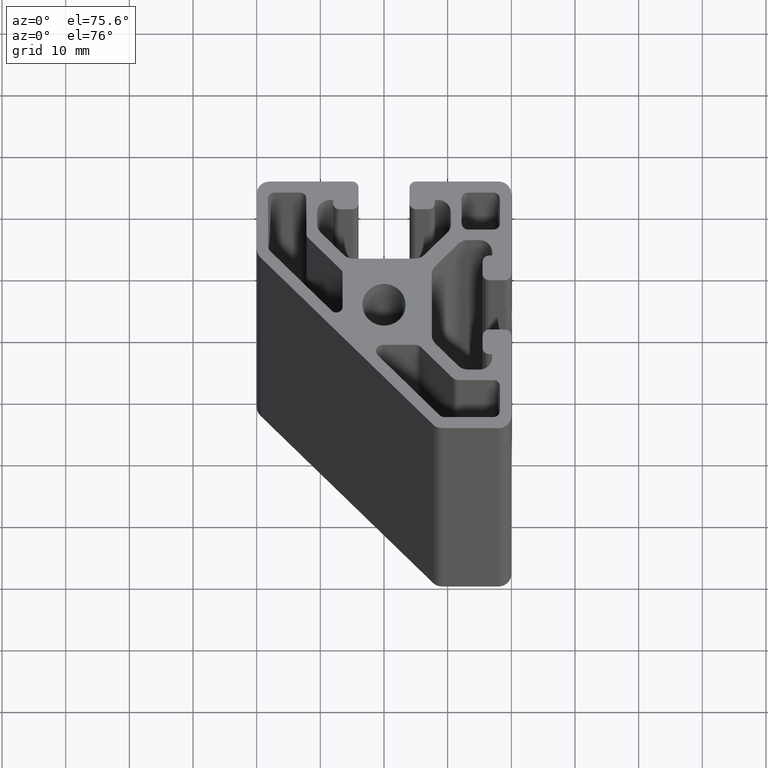
[diagram: clean part render]
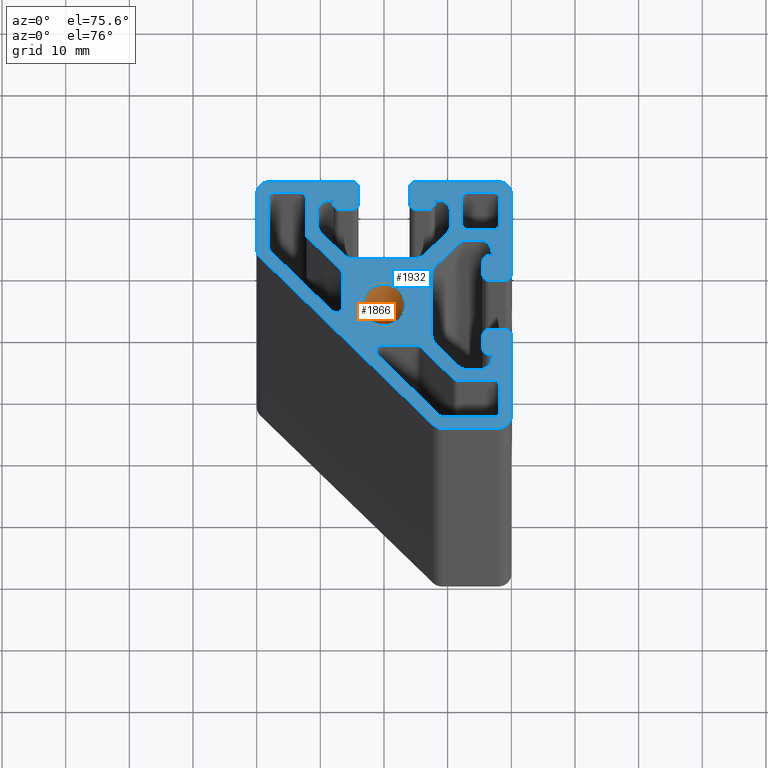
[diagram: same view with the hole feature highlighted: cylindrical wall and planar end face, labeled with their STEP entity ids]
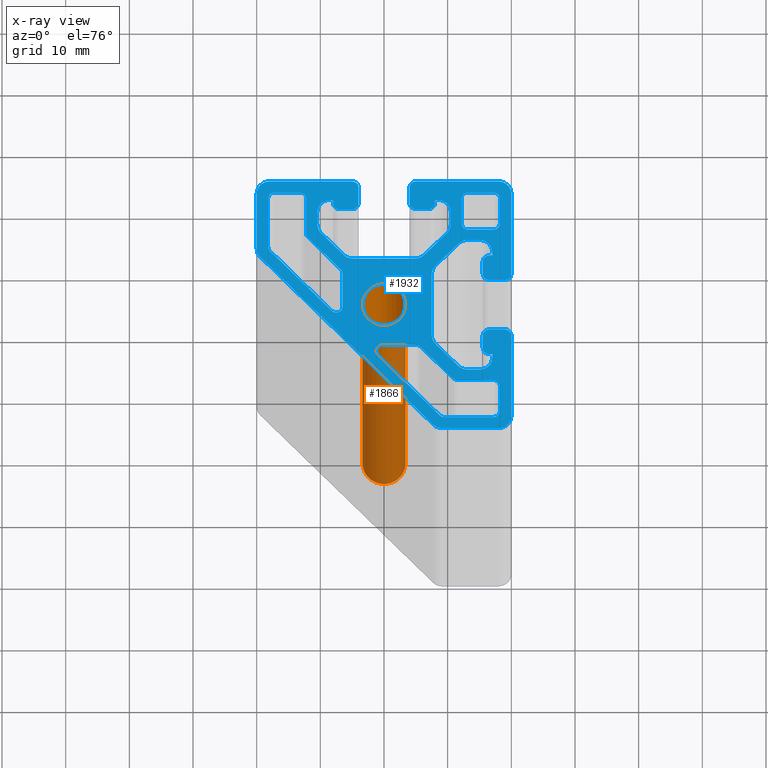
[diagram: x-ray of the same camera — body ghosted, the hole faces saturated]
A machine part, auxiliary view. The highlighted faces form one hole feature of diameter 6.8 mm: the cylindrical wall (entity #1866, orange) and its adjacent planar end face (entity #1932, blue) — they share a circular edge in the B-rep.
The next image is the same camera in x-ray (body ghosted, the hole faces saturated) — the bore reads through the body.
Wall:
#15=FACE_BOUND('',#197,.T.);
#99=FACE_OUTER_BOUND('',#196,.T.);
#196=EDGE_LOOP('',(#1324));
#197=EDGE_LOOP('',(#1325));
#686=CIRCLE('',#1990,3.3999932);
#687=CIRCLE('',#1991,3.3999932);
#802=VERTEX_POINT('',#2848);
#803=VERTEX_POINT('',#2850);
#1016=EDGE_CURVE('',#802,#802,#686,.T.);
#1017=EDGE_CURVE('',#803,#803,#687,.T.);
#1324=ORIENTED_EDGE('',*,*,#1016,.F.);
#1325=ORIENTED_EDGE('',*,*,#1017,.F.);
#1808=CYLINDRICAL_SURFACE('',#1989,3.3999932);
#1866=ADVANCED_FACE('',(#99,#15),#1808,.F.);
#1989=AXIS2_PLACEMENT_3D('',#2847,#2276,#2277);
#1990=AXIS2_PLACEMENT_3D('',#2849,#2278,#2279);
#1991=AXIS2_PLACEMENT_3D('',#2851,#2280,#2281);
#2276=DIRECTION('center_axis',(0.,0.,1.));
#2277=DIRECTION('ref_axis',(-1.,0.,0.));
#2278=DIRECTION('center_axis',(0.,0.,-1.));
#2279=DIRECTION('ref_axis',(-1.,0.,0.));
#2280=DIRECTION('center_axis',(0.,0.,1.));
#2281=DIRECTION('ref_axis',(-1.,0.,0.));
#2847=CARTESIAN_POINT('Origin',(0.,0.,0.));
#2848=CARTESIAN_POINT('',(3.3999932,-4.16379078950276E-16,100.));
#2849=CARTESIAN_POINT('Origin',(0.,0.,100.));
#2850=CARTESIAN_POINT('',(3.3999932,4.16379078950276E-16,0.));
#2851=CARTESIAN_POINT('Origin',(0.,0.,0.));
End face:
#16=FACE_BOUND('',#264,.T.);
#17=FACE_BOUND('',#265,.T.);
#18=FACE_BOUND('',#266,.T.);
#19=FACE_BOUND('',#267,.T.);
#71=PLANE('',#2117);
#165=FACE_OUTER_BOUND('',#263,.T.);
#263=EDGE_LOOP('',(#1586,#1587,#1588,#1589,#1590,#1591,#1592,#1593,#1594,
#1595,#1596,#1597,#1598,#1599,#1600,#1601,#1602,#1603,#1604,#1605,#1606,
#1607,#1608,#1609,#1610,#1611,#1612,#1613,#1614,#1615,#1616,#1617,#1618,
#1619,#1620,#1621,#1622,#1623,#1624,#1625,#1626,#1627,#1628,#1629,#1630,
#1631,#1632,#1633,#1634,#1635,#1636,#1637,#1638,#1639,#1640,#1641,#1642,
#1643,#1644,#1645,#1646,#1647));
#264=EDGE_LOOP('',(#1648,#1649,#1650,#1651,#1652,#1653,#1654,#1655));
#265=EDGE_LOOP('',(#1656));
#266=EDGE_LOOP('',(#1657,#1658,#1659,#1660,#1661,#1662,#1663,#1664,#1665,
#1666,#1667,#1668));
#267=EDGE_LOOP('',(#1669,#1670,#1671,#1672,#1673,#1674,#1675,#1676,#1677,
#1678,#1679,#1680));
#280=LINE('',#2714,#472);
#284=LINE('',#2726,#476);
#288=LINE('',#2738,#480);
#292=LINE('',#2750,#484);
#296=LINE('',#2762,#488);
#300=LINE('',#2773,#492);
#304=LINE('',#2786,#496);
#308=LINE('',#2798,#500);
#312=LINE('',#2810,#504);
#316=LINE('',#2822,#508);
#320=LINE('',#2834,#512);
#324=LINE('',#2845,#516);
#328=LINE('',#2863,#520);
#334=LINE('',#2884,#526);
#338=LINE('',#2896,#530);
#341=LINE('',#2902,#533);
#345=LINE('',#2914,#537);
#349=LINE('',#2926,#541);
#353=LINE('',#2938,#545);
#357=LINE('',#2950,#549);
#361=LINE('',#2962,#553);
#365=LINE('',#2974,#557);
#368=LINE('',#2980,#560);
#372=LINE('',#2992,#564);
#376=LINE('',#3004,#568);
#382=LINE('',#3024,#574);
#386=LINE('',#3037,#578);
#389=LINE('',#3043,#581);
#393=LINE('',#3055,#585);
#397=LINE('',#3067,#589);
#401=LINE('',#3079,#593);
#405=LINE('',#3091,#597);
#409=LINE('',#3103,#601);
#413=LINE('',#3115,#605);
#416=LINE('',#3121,#608);
#420=LINE('',#3133,#612);
#424=LINE('',#3145,#616);
#430=LINE('',#3166,#622);
#434=LINE('',#3177,#626);
#438=LINE('',#3190,#630);
#442=LINE('',#3202,#634);
#446=LINE('',#3214,#638);
#450=LINE('',#3225,#642);
#452=LINE('',#3229,#644);
#457=LINE('',#3238,#649);
#458=LINE('',#3241,#650);
#463=LINE('',#3250,#655);
#464=LINE('',#3253,#656);
#465=LINE('',#3257,#657);
#472=VECTOR('',#2142,7.75597227081639);
#476=VECTOR('',#2154,4.00000000000001);
#480=VECTOR('',#2166,5.64644660940685);
#484=VECTOR('',#2178,7.23259100752928);
#488=VECTOR('',#2190,5.28110335834685);
#492=VECTOR('',#2202,13.7178772113405);
#496=VECTOR('',#2214,7.23259100752928);
#500=VECTOR('',#2226,5.64644660940685);
#504=VECTOR('',#2238,4.);
#508=VECTOR('',#2250,7.75597227081638);
#512=VECTOR('',#2262,13.7178772113405);
#516=VECTOR('',#2274,5.28110335834685);
#520=VECTOR('',#2292,38.3430920986243);
#526=VECTOR('',#2312,2.0000039918977);
#530=VECTOR('',#2324,0.500001995948849);
#533=VECTOR('',#2329,0.499999999999998);
#537=VECTOR('',#2341,1.90380592228743);
#541=VECTOR('',#2353,5.08578643762691);
#545=VECTOR('',#2365,9.80761184457489);
#549=VECTOR('',#2377,5.08578643762691);
#553=VECTOR('',#2389,1.90380592228744);
#557=VECTOR('',#2401,0.499999999999996);
#560=VECTOR('',#2406,0.500001995948849);
#564=VECTOR('',#2418,2.0000039918977);
#568=VECTOR('',#2430,2.50000399189769);
#574=VECTOR('',#2450,2.50000399189769);
#578=VECTOR('',#2462,0.500001995948844);
#581=VECTOR('',#2467,0.499999999999996);
#585=VECTOR('',#2479,1.90380592228744);
#589=VECTOR('',#2491,5.0857864376269);
#593=VECTOR('',#2503,9.80761184457488);
#597=VECTOR('',#2515,5.08578643762692);
#601=VECTOR('',#2527,1.90380592228744);
#605=VECTOR('',#2539,0.5);
#608=VECTOR('',#2544,0.500001995948853);
#612=VECTOR('',#2556,2.00000399189771);
#616=VECTOR('',#2568,2.50000399189769);
#622=VECTOR('',#2588,2.50000399189769);
#626=VECTOR('',#2600,2.0000039918977);
#630=VECTOR('',#2612,4.);
#634=VECTOR('',#2624,4.00000000000002);
#638=VECTOR('',#2636,3.99999999999999);
#642=VECTOR('',#2648,4.00000000000001);
#644=VECTOR('',#2652,8.88734421661765);
#649=VECTOR('',#2659,13.0000019959489);
#650=VECTOR('',#2662,13.0000019959488);
#655=VECTOR('',#2669,13.0000019959489);
#656=VECTOR('',#2672,8.88734421661766);
#657=VECTOR('',#2677,13.0000019959488);
#662=CIRCLE('',#1942,0.999997994528179);
#664=CIRCLE('',#1946,1.);
#666=CIRCLE('',#1950,0.999999999999993);
#668=CIRCLE('',#1954,0.999999999999998);
#670=CIRCLE('',#1958,0.99999800405115);
#672=CIRCLE('',#1962,0.999998001159457);
#674=CIRCLE('',#1966,0.999998004051153);
#676=CIRCLE('',#1970,1.);
#678=CIRCLE('',#1974,1.);
#680=CIRCLE('',#1978,1.);
#682=CIRCLE('',#1982,0.999997994528175);
#684=CIRCLE('',#1986,0.999998001159454);
#686=CIRCLE('',#1990,3.3999932);
#688=CIRCLE('',#1993,1.99999534878476);
#690=CIRCLE('',#1997,1.99999534878477);
#692=CIRCLE('',#2000,0.99999800405115);
#694=CIRCLE('',#2004,0.99999800405115);
#696=CIRCLE('',#2009,2.);
#698=CIRCLE('',#2013,2.);
#700=CIRCLE('',#2017,1.99999999999999);
#702=CIRCLE('',#2021,1.99999999999999);
#704=CIRCLE('',#2025,2.);
#706=CIRCLE('',#2029,2.);
#708=CIRCLE('',#2034,0.999998004051152);
#710=CIRCLE('',#2038,0.999998004051154);
#712=CIRCLE('',#2042,0.99999800405115);
#714=CIRCLE('',#2045,0.99999800405115);
#716=CIRCLE('',#2049,0.99999800405115);
#718=CIRCLE('',#2054,2.);
#720=CIRCLE('',#2058,2.);
#722=CIRCLE('',#2062,2.);
#724=CIRCLE('',#2066,2.00000000000001);
#726=CIRCLE('',#2070,2.);
#728=CIRCLE('',#2074,2.);
#730=CIRCLE('',#2079,0.99999800405115);
#732=CIRCLE('',#2083,0.99999800405115);
#734=CIRCLE('',#2087,0.99999800405115);
#736=CIRCLE('',#2090,0.99999800405115);
#738=CIRCLE('',#2094,0.999998004051154);
#740=CIRCLE('',#2098,1.);
#742=CIRCLE('',#2102,1.);
#744=CIRCLE('',#2106,1.);
#746=CIRCLE('',#2110,1.);
#748=CIRCLE('',#2118,2.);
#749=CIRCLE('',#2119,2.);
#750=CIRCLE('',#2120,2.);
#754=VERTEX_POINT('',#2704);
#755=VERTEX_POINT('',#2705);
#758=VERTEX_POINT('',#2713);
#760=VERTEX_POINT('',#2719);
#762=VERTEX_POINT('',#2725);
#764=VERTEX_POINT('',#2731);
#766=VERTEX_POINT('',#2737);
#768=VERTEX_POINT('',#2743);
#770=VERTEX_POINT('',#2749);
#772=VERTEX_POINT('',#2755);
#774=VERTEX_POINT('',#2761);
#776=VERTEX_POINT('',#2767);
#778=VERTEX_POINT('',#2776);
#779=VERTEX_POINT('',#2777);
#782=VERTEX_POINT('',#2785);
#784=VERTEX_POINT('',#2791);
#786=VERTEX_POINT('',#2797);
#788=VERTEX_POINT('',#2803);
#790=VERTEX_POINT('',#2809);
#792=VERTEX_POINT('',#2815);
#794=VERTEX_POINT('',#2821);
#796=VERTEX_POINT('',#2827);
#798=VERTEX_POINT('',#2833);
#800=VERTEX_POINT('',#2839);
#802=VERTEX_POINT('',#2848);
#804=VERTEX_POINT('',#2853);
#805=VERTEX_POINT('',#2854);
#808=VERTEX_POINT('',#2862);
#810=VERTEX_POINT('',#2868);
#812=VERTEX_POINT('',#2874);
#813=VERTEX_POINT('',#2875);
#816=VERTEX_POINT('',#2883);
#818=VERTEX_POINT('',#2889);
#820=VERTEX_POINT('',#2895);
#822=VERTEX_POINT('',#2901);
#824=VERTEX_POINT('',#2907);
#826=VERTEX_POINT('',#2913);
#828=VERTEX_POINT('',#2919);
#830=VERTEX_POINT('',#2925);
#832=VERTEX_POINT('',#2931);
#834=VERTEX_POINT('',#2937);
#836=VERTEX_POINT('',#2943);
#838=VERTEX_POINT('',#2949);
#840=VERTEX_POINT('',#2955);
#842=VERTEX_POINT('',#2961);
#844=VERTEX_POINT('',#2967);
#846=VERTEX_POINT('',#2973);
#848=VERTEX_POINT('',#2979);
#850=VERTEX_POINT('',#2985);
#852=VERTEX_POINT('',#2991);
#854=VERTEX_POINT('',#2997);
#856=VERTEX_POINT('',#3003);
#858=VERTEX_POINT('',#3009);
#860=VERTEX_POINT('',#3015);
#861=VERTEX_POINT('',#3016);
#864=VERTEX_POINT('',#3027);
#865=VERTEX_POINT('',#3028);
#868=VERTEX_POINT('',#3036);
#870=VERTEX_POINT('',#3042);
#872=VERTEX_POINT('',#3048);
#874=VERTEX_POINT('',#3054);
#876=VERTEX_POINT('',#3060);
#878=VERTEX_POINT('',#3066);
#880=VERTEX_POINT('',#3072);
#882=VERTEX_POINT('',#3078);
#884=VERTEX_POINT('',#3084);
#886=VERTEX_POINT('',#3090);
#888=VERTEX_POINT('',#3096);
#890=VERTEX_POINT('',#3102);
#892=VERTEX_POINT('',#3108);
#894=VERTEX_POINT('',#3114);
#896=VERTEX_POINT('',#3120);
#898=VERTEX_POINT('',#3126);
#900=VERTEX_POINT('',#3132);
#902=VERTEX_POINT('',#3138);
#904=VERTEX_POINT('',#3144);
#906=VERTEX_POINT('',#3150);
#908=VERTEX_POINT('',#3156);
#909=VERTEX_POINT('',#3157);
#912=VERTEX_POINT('',#3165);
#914=VERTEX_POINT('',#3171);
#916=VERTEX_POINT('',#3180);
#917=VERTEX_POINT('',#3181);
#920=VERTEX_POINT('',#3189);
#922=VERTEX_POINT('',#3195);
#924=VERTEX_POINT('',#3201);
#926=VERTEX_POINT('',#3207);
#928=VERTEX_POINT('',#3213);
#930=VERTEX_POINT('',#3219);
#932=VERTEX_POINT('',#3228);
#935=VERTEX_POINT('',#3236);
#936=VERTEX_POINT('',#3240);
#939=VERTEX_POINT('',#3248);
#940=VERTEX_POINT('',#3252);
#941=VERTEX_POINT('',#3255);
#944=EDGE_CURVE('',#754,#755,#662,.T.);
#948=EDGE_CURVE('',#755,#758,#280,.T.);
#951=EDGE_CURVE('',#758,#760,#664,.T.);
#954=EDGE_CURVE('',#760,#762,#284,.T.);
#957=EDGE_CURVE('',#762,#764,#666,.T.);
#960=EDGE_CURVE('',#764,#766,#288,.T.);
#963=EDGE_CURVE('',#766,#768,#668,.T.);
#966=EDGE_CURVE('',#768,#770,#292,.T.);
#969=EDGE_CURVE('',#770,#772,#670,.T.);
#972=EDGE_CURVE('',#772,#774,#296,.T.);
#975=EDGE_CURVE('',#774,#776,#672,.T.);
#978=EDGE_CURVE('',#776,#754,#300,.T.);
#980=EDGE_CURVE('',#778,#779,#674,.T.);
#984=EDGE_CURVE('',#779,#782,#304,.T.);
#987=EDGE_CURVE('',#782,#784,#676,.T.);
#990=EDGE_CURVE('',#784,#786,#308,.T.);
#993=EDGE_CURVE('',#786,#788,#678,.T.);
#996=EDGE_CURVE('',#788,#790,#312,.T.);
#999=EDGE_CURVE('',#790,#792,#680,.T.);
#1002=EDGE_CURVE('',#792,#794,#316,.T.);
#1005=EDGE_CURVE('',#794,#796,#682,.T.);
#1008=EDGE_CURVE('',#796,#798,#320,.T.);
#1011=EDGE_CURVE('',#798,#800,#684,.T.);
#1014=EDGE_CURVE('',#800,#778,#324,.T.);
#1016=EDGE_CURVE('',#802,#802,#686,.T.);
#1018=EDGE_CURVE('',#804,#805,#688,.T.);
#1022=EDGE_CURVE('',#805,#808,#328,.T.);
#1025=EDGE_CURVE('',#808,#810,#690,.T.);
#1028=EDGE_CURVE('',#812,#813,#692,.T.);
#1032=EDGE_CURVE('',#816,#812,#334,.T.);
#1035=EDGE_CURVE('',#818,#816,#694,.T.);
#1038=EDGE_CURVE('',#820,#818,#338,.T.);
#1041=EDGE_CURVE('',#822,#820,#341,.T.);
#1044=EDGE_CURVE('',#824,#822,#696,.T.);
#1047=EDGE_CURVE('',#826,#824,#345,.T.);
#1050=EDGE_CURVE('',#828,#826,#698,.T.);
#1053=EDGE_CURVE('',#830,#828,#349,.T.);
#1056=EDGE_CURVE('',#832,#830,#700,.T.);
#1059=EDGE_CURVE('',#834,#832,#353,.T.);
#1062=EDGE_CURVE('',#836,#834,#702,.T.);
#1065=EDGE_CURVE('',#838,#836,#357,.T.);
#1068=EDGE_CURVE('',#840,#838,#704,.T.);
#1071=EDGE_CURVE('',#842,#840,#361,.T.);
#1074=EDGE_CURVE('',#844,#842,#706,.T.);
#1077=EDGE_CURVE('',#846,#844,#365,.T.);
#1080=EDGE_CURVE('',#848,#846,#368,.T.);
#1083=EDGE_CURVE('',#850,#848,#708,.T.);
#1086=EDGE_CURVE('',#852,#850,#372,.T.);
#1089=EDGE_CURVE('',#854,#852,#710,.T.);
#1092=EDGE_CURVE('',#856,#854,#376,.T.);
#1095=EDGE_CURVE('',#858,#856,#712,.T.);
#1098=EDGE_CURVE('',#860,#861,#714,.T.);
#1102=EDGE_CURVE('',#813,#860,#382,.T.);
#1104=EDGE_CURVE('',#864,#865,#716,.T.);
#1108=EDGE_CURVE('',#865,#868,#386,.T.);
#1111=EDGE_CURVE('',#868,#870,#389,.T.);
#1114=EDGE_CURVE('',#870,#872,#718,.T.);
#1117=EDGE_CURVE('',#872,#874,#393,.T.);
#1120=EDGE_CURVE('',#874,#876,#720,.T.);
#1123=EDGE_CURVE('',#876,#878,#397,.T.);
#1126=EDGE_CURVE('',#878,#880,#722,.T.);
#1129=EDGE_CURVE('',#880,#882,#401,.T.);
#1132=EDGE_CURVE('',#882,#884,#724,.T.);
#1135=EDGE_CURVE('',#884,#886,#405,.T.);
#1138=EDGE_CURVE('',#886,#888,#726,.T.);
#1141=EDGE_CURVE('',#888,#890,#409,.T.);
#1144=EDGE_CURVE('',#890,#892,#728,.T.);
#1147=EDGE_CURVE('',#892,#894,#413,.T.);
#1150=EDGE_CURVE('',#894,#896,#416,.T.);
#1153=EDGE_CURVE('',#896,#898,#730,.T.);
#1156=EDGE_CURVE('',#898,#900,#420,.T.);
#1159=EDGE_CURVE('',#900,#902,#732,.T.);
#1162=EDGE_CURVE('',#902,#904,#424,.T.);
#1165=EDGE_CURVE('',#904,#906,#734,.T.);
#1168=EDGE_CURVE('',#908,#909,#736,.T.);
#1172=EDGE_CURVE('',#909,#912,#430,.T.);
#1175=EDGE_CURVE('',#912,#914,#738,.T.);
#1178=EDGE_CURVE('',#914,#864,#434,.T.);
#1180=EDGE_CURVE('',#916,#917,#740,.T.);
#1184=EDGE_CURVE('',#920,#916,#438,.T.);
#1187=EDGE_CURVE('',#922,#920,#742,.T.);
#1190=EDGE_CURVE('',#924,#922,#442,.T.);
#1193=EDGE_CURVE('',#926,#924,#744,.T.);
#1196=EDGE_CURVE('',#928,#926,#446,.T.);
#1199=EDGE_CURVE('',#930,#928,#746,.T.);
#1202=EDGE_CURVE('',#917,#930,#450,.T.);
#1204=EDGE_CURVE('',#804,#932,#452,.T.);
#1209=EDGE_CURVE('',#935,#861,#457,.T.);
#1210=EDGE_CURVE('',#858,#936,#458,.T.);
#1215=EDGE_CURVE('',#939,#906,#463,.T.);
#1216=EDGE_CURVE('',#940,#810,#464,.T.);
#1217=EDGE_CURVE('',#936,#940,#748,.T.);
#1218=EDGE_CURVE('',#941,#935,#749,.T.);
#1219=EDGE_CURVE('',#908,#941,#465,.T.);
#1220=EDGE_CURVE('',#932,#939,#750,.T.);
#1586=ORIENTED_EDGE('',*,*,#1018,.T.);
#1587=ORIENTED_EDGE('',*,*,#1022,.T.);
#1588=ORIENTED_EDGE('',*,*,#1025,.T.);
#1589=ORIENTED_EDGE('',*,*,#1216,.F.);
#1590=ORIENTED_EDGE('',*,*,#1217,.F.);
#1591=ORIENTED_EDGE('',*,*,#1210,.F.);
#1592=ORIENTED_EDGE('',*,*,#1095,.T.);
#1593=ORIENTED_EDGE('',*,*,#1092,.T.);
#1594=ORIENTED_EDGE('',*,*,#1089,.T.);
#1595=ORIENTED_EDGE('',*,*,#1086,.T.);
#1596=ORIENTED_EDGE('',*,*,#1083,.T.);
#1597=ORIENTED_EDGE('',*,*,#1080,.T.);
#1598=ORIENTED_EDGE('',*,*,#1077,.T.);
#1599=ORIENTED_EDGE('',*,*,#1074,.T.);
#1600=ORIENTED_EDGE('',*,*,#1071,.T.);
#1601=ORIENTED_EDGE('',*,*,#1068,.T.);
#1602=ORIENTED_EDGE('',*,*,#1065,.T.);
#1603=ORIENTED_EDGE('',*,*,#1062,.T.);
#1604=ORIENTED_EDGE('',*,*,#1059,.T.);
#1605=ORIENTED_EDGE('',*,*,#1056,.T.);
#1606=ORIENTED_EDGE('',*,*,#1053,.T.);
#1607=ORIENTED_EDGE('',*,*,#1050,.T.);
#1608=ORIENTED_EDGE('',*,*,#1047,.T.);
#1609=ORIENTED_EDGE('',*,*,#1044,.T.);
#1610=ORIENTED_EDGE('',*,*,#1041,.T.);
#1611=ORIENTED_EDGE('',*,*,#1038,.T.);
#1612=ORIENTED_EDGE('',*,*,#1035,.T.);
#1613=ORIENTED_EDGE('',*,*,#1032,.T.);
#1614=ORIENTED_EDGE('',*,*,#1028,.T.);
#1615=ORIENTED_EDGE('',*,*,#1102,.T.);
#1616=ORIENTED_EDGE('',*,*,#1098,.T.);
#1617=ORIENTED_EDGE('',*,*,#1209,.F.);
#1618=ORIENTED_EDGE('',*,*,#1218,.F.);
#1619=ORIENTED_EDGE('',*,*,#1219,.F.);
#1620=ORIENTED_EDGE('',*,*,#1168,.T.);
#1621=ORIENTED_EDGE('',*,*,#1172,.T.);
#1622=ORIENTED_EDGE('',*,*,#1175,.T.);
#1623=ORIENTED_EDGE('',*,*,#1178,.T.);
#1624=ORIENTED_EDGE('',*,*,#1104,.T.);
#1625=ORIENTED_EDGE('',*,*,#1108,.T.);
#1626=ORIENTED_EDGE('',*,*,#1111,.T.);
#1627=ORIENTED_EDGE('',*,*,#1114,.T.);
#1628=ORIENTED_EDGE('',*,*,#1117,.T.);
#1629=ORIENTED_EDGE('',*,*,#1120,.T.);
#1630=ORIENTED_EDGE('',*,*,#1123,.T.);
#1631=ORIENTED_EDGE('',*,*,#1126,.T.);
#1632=ORIENTED_EDGE('',*,*,#1129,.T.);
#1633=ORIENTED_EDGE('',*,*,#1132,.T.);
#1634=ORIENTED_EDGE('',*,*,#1135,.T.);
#1635=ORIENTED_EDGE('',*,*,#1138,.T.);
#1636=ORIENTED_EDGE('',*,*,#1141,.T.);
#1637=ORIENTED_EDGE('',*,*,#1144,.T.);
#1638=ORIENTED_EDGE('',*,*,#1147,.T.);
#1639=ORIENTED_EDGE('',*,*,#1150,.T.);
#1640=ORIENTED_EDGE('',*,*,#1153,.T.);
#1641=ORIENTED_EDGE('',*,*,#1156,.T.);
#1642=ORIENTED_EDGE('',*,*,#1159,.T.);
#1643=ORIENTED_EDGE('',*,*,#1162,.T.);
#1644=ORIENTED_EDGE('',*,*,#1165,.T.);
#1645=ORIENTED_EDGE('',*,*,#1215,.F.);
#1646=ORIENTED_EDGE('',*,*,#1220,.F.);
#1647=ORIENTED_EDGE('',*,*,#1204,.F.);
#1648=ORIENTED_EDGE('',*,*,#1180,.T.);
#1649=ORIENTED_EDGE('',*,*,#1202,.T.);
#1650=ORIENTED_EDGE('',*,*,#1199,.T.);
#1651=ORIENTED_EDGE('',*,*,#1196,.T.);
#1652=ORIENTED_EDGE('',*,*,#1193,.T.);
#1653=ORIENTED_EDGE('',*,*,#1190,.T.);
#1654=ORIENTED_EDGE('',*,*,#1187,.T.);
#1655=ORIENTED_EDGE('',*,*,#1184,.T.);
#1656=ORIENTED_EDGE('',*,*,#1016,.T.);
#1657=ORIENTED_EDGE('',*,*,#980,.T.);
#1658=ORIENTED_EDGE('',*,*,#984,.T.);
#1659=ORIENTED_EDGE('',*,*,#987,.T.);
#1660=ORIENTED_EDGE('',*,*,#990,.T.);
#1661=ORIENTED_EDGE('',*,*,#993,.T.);
#1662=ORIENTED_EDGE('',*,*,#996,.T.);
#1663=ORIENTED_EDGE('',*,*,#999,.T.);
#1664=ORIENTED_EDGE('',*,*,#1002,.T.);
#1665=ORIENTED_EDGE('',*,*,#1005,.T.);
#1666=ORIENTED_EDGE('',*,*,#1008,.T.);
#1667=ORIENTED_EDGE('',*,*,#1011,.T.);
#1668=ORIENTED_EDGE('',*,*,#1014,.T.);
#1669=ORIENTED_EDGE('',*,*,#944,.T.);
#1670=ORIENTED_EDGE('',*,*,#948,.T.);
#1671=ORIENTED_EDGE('',*,*,#951,.T.);
#1672=ORIENTED_EDGE('',*,*,#954,.T.);
#1673=ORIENTED_EDGE('',*,*,#957,.T.);
#1674=ORIENTED_EDGE('',*,*,#960,.T.);
#1675=ORIENTED_EDGE('',*,*,#963,.T.);
#1676=ORIENTED_EDGE('',*,*,#966,.T.);
#1677=ORIENTED_EDGE('',*,*,#969,.T.);
#1678=ORIENTED_EDGE('',*,*,#972,.T.);
#1679=ORIENTED_EDGE('',*,*,#975,.T.);
#1680=ORIENTED_EDGE('',*,*,#978,.T.);
#1932=ADVANCED_FACE('',(#165,#16,#17,#18,#19),#71,.T.);
#1942=AXIS2_PLACEMENT_3D('',#2706,#2134,#2135);
#1946=AXIS2_PLACEMENT_3D('',#2720,#2147,#2148);
#1950=AXIS2_PLACEMENT_3D('',#2732,#2159,#2160);
#1954=AXIS2_PLACEMENT_3D('',#2744,#2171,#2172);
#1958=AXIS2_PLACEMENT_3D('',#2756,#2183,#2184);
#1962=AXIS2_PLACEMENT_3D('',#2768,#2195,#2196);
#1966=AXIS2_PLACEMENT_3D('',#2778,#2206,#2207);
#1970=AXIS2_PLACEMENT_3D('',#2792,#2219,#2220);
#1974=AXIS2_PLACEMENT_3D('',#2804,#2231,#2232);
#1978=AXIS2_PLACEMENT_3D('',#2816,#2243,#2244);
#1982=AXIS2_PLACEMENT_3D('',#2828,#2255,#2256);
#1986=AXIS2_PLACEMENT_3D('',#2840,#2267,#2268);
#1990=AXIS2_PLACEMENT_3D('',#2849,#2278,#2279);
#1993=AXIS2_PLACEMENT_3D('',#2855,#2284,#2285);
#1997=AXIS2_PLACEMENT_3D('',#2869,#2297,#2298);
#2000=AXIS2_PLACEMENT_3D('',#2876,#2304,#2305);
#2004=AXIS2_PLACEMENT_3D('',#2890,#2317,#2318);
#2009=AXIS2_PLACEMENT_3D('',#2908,#2334,#2335);
#2013=AXIS2_PLACEMENT_3D('',#2920,#2346,#2347);
#2017=AXIS2_PLACEMENT_3D('',#2932,#2358,#2359);
#2021=AXIS2_PLACEMENT_3D('',#2944,#2370,#2371);
#2025=AXIS2_PLACEMENT_3D('',#2956,#2382,#2383);
#2029=AXIS2_PLACEMENT_3D('',#2968,#2394,#2395);
#2034=AXIS2_PLACEMENT_3D('',#2986,#2411,#2412);
#2038=AXIS2_PLACEMENT_3D('',#2998,#2423,#2424);
#2042=AXIS2_PLACEMENT_3D('',#3010,#2435,#2436);
#2045=AXIS2_PLACEMENT_3D('',#3017,#2442,#2443);
#2049=AXIS2_PLACEMENT_3D('',#3029,#2454,#2455);
#2054=AXIS2_PLACEMENT_3D('',#3049,#2472,#2473);
#2058=AXIS2_PLACEMENT_3D('',#3061,#2484,#2485);
#2062=AXIS2_PLACEMENT_3D('',#3073,#2496,#2497);
#2066=AXIS2_PLACEMENT_3D('',#3085,#2508,#2509);
#2070=AXIS2_PLACEMENT_3D('',#3097,#2520,#2521);
#2074=AXIS2_PLACEMENT_3D('',#3109,#2532,#2533);
#2079=AXIS2_PLACEMENT_3D('',#3127,#2549,#2550);
#2083=AXIS2_PLACEMENT_3D('',#3139,#2561,#2562);
#2087=AXIS2_PLACEMENT_3D('',#3151,#2573,#2574);
#2090=AXIS2_PLACEMENT_3D('',#3158,#2580,#2581);
#2094=AXIS2_PLACEMENT_3D('',#3172,#2593,#2594);
#2098=AXIS2_PLACEMENT_3D('',#3182,#2604,#2605);
#2102=AXIS2_PLACEMENT_3D('',#3196,#2617,#2618);
#2106=AXIS2_PLACEMENT_3D('',#3208,#2629,#2630);
#2110=AXIS2_PLACEMENT_3D('',#3220,#2641,#2642);
#2117=AXIS2_PLACEMENT_3D('',#3251,#2670,#2671);
#2118=AXIS2_PLACEMENT_3D('',#3254,#2673,#2674);
#2119=AXIS2_PLACEMENT_3D('',#3256,#2675,#2676);
#2120=AXIS2_PLACEMENT_3D('',#3258,#2678,#2679);
#2134=DIRECTION('center_axis',(0.,0.,-1.));
#2135=DIRECTION('ref_axis',(1.,0.,0.));
#2142=DIRECTION('',(4.00803968916617E-15,1.,0.));
#2147=DIRECTION('center_axis',(0.,0.,-1.));
#2148=DIRECTION('ref_axis',(4.44089209850062E-15,-1.,0.));
#2154=DIRECTION('',(1.,-4.44089209850061E-15,0.));
#2159=DIRECTION('center_axis',(0.,0.,-1.));
#2160=DIRECTION('ref_axis',(-1.,0.,0.));
#2166=DIRECTION('',(-1.57298648360624E-15,-1.,0.));
#2171=DIRECTION('center_axis',(0.,0.,1.));
#2172=DIRECTION('ref_axis',(-1.,-8.8817841970013E-15,0.));
#2178=DIRECTION('',(0.70710678118655,-0.707106781186545,0.));
#2183=DIRECTION('center_axis',(0.,0.,-1.));
#2184=DIRECTION('ref_axis',(-1.,-4.44090096231179E-15,0.));
#2190=DIRECTION('',(5.04541395670479E-15,-1.,0.));
#2195=DIRECTION('center_axis',(0.,0.,-1.));
#2196=DIRECTION('ref_axis',(0.707106781186555,0.70710678118654,0.));
#2202=DIRECTION('',(-0.707106781186547,0.707106781186548,0.));
#2206=DIRECTION('center_axis',(0.,0.,-1.));
#2207=DIRECTION('ref_axis',(-0.707106781186549,-0.707106781186546,0.));
#2214=DIRECTION('',(0.707106781186543,-0.707106781186552,0.));
#2219=DIRECTION('center_axis',(0.,0.,1.));
#2220=DIRECTION('ref_axis',(-0.70710678118655,-0.707106781186545,0.));
#2226=DIRECTION('',(1.,-7.8649324180312E-16,0.));
#2231=DIRECTION('center_axis',(0.,0.,-1.));
#2232=DIRECTION('ref_axis',(-1.,0.,0.));
#2238=DIRECTION('',(-1.11022302462516E-15,-1.,0.));
#2243=DIRECTION('center_axis',(0.,0.,-1.));
#2244=DIRECTION('ref_axis',(0.,1.,0.));
#2250=DIRECTION('',(-1.,-8.58865647678467E-16,0.));
#2255=DIRECTION('center_axis',(0.,0.,-1.));
#2256=DIRECTION('ref_axis',(0.707106781186547,0.707106781186547,0.));
#2262=DIRECTION('',(-0.707106781186548,0.707106781186548,0.));
#2267=DIRECTION('center_axis',(0.,0.,-1.));
#2268=DIRECTION('ref_axis',(-8.88180195030711E-15,-1.,0.));
#2274=DIRECTION('',(1.,-5.88631628282226E-15,0.));
#2278=DIRECTION('center_axis',(0.,0.,-1.));
#2279=DIRECTION('ref_axis',(-1.,0.,0.));
#2284=DIRECTION('center_axis',(0.,0.,1.));
#2285=DIRECTION('ref_axis',(1.,-6.66135363944577E-15,0.));
#2292=DIRECTION('',(0.707106781186547,-0.707106781186547,0.));
#2297=DIRECTION('center_axis',(0.,0.,1.));
#2298=DIRECTION('ref_axis',(0.707106781186548,0.707106781186547,0.));
#2304=DIRECTION('center_axis',(0.,0.,1.));
#2305=DIRECTION('ref_axis',(1.,0.,0.));
#2312=DIRECTION('',(0.,-1.,0.));
#2317=DIRECTION('center_axis',(0.,0.,1.));
#2318=DIRECTION('ref_axis',(0.,-1.,0.));
#2324=DIRECTION('',(-1.,0.,0.));
#2329=DIRECTION('',(0.,-1.,0.));
#2334=DIRECTION('center_axis',(0.,0.,-1.));
#2335=DIRECTION('ref_axis',(1.,0.,0.));
#2341=DIRECTION('',(1.,0.,0.));
#2346=DIRECTION('center_axis',(0.,0.,-1.));
#2347=DIRECTION('ref_axis',(4.44089209850062E-15,1.,0.));
#2353=DIRECTION('',(0.707106781186548,0.707106781186547,0.));
#2358=DIRECTION('center_axis',(0.,0.,-1.));
#2359=DIRECTION('ref_axis',(-0.707106781186546,0.707106781186549,0.));
#2365=DIRECTION('',(-6.79200834343345E-16,1.,0.));
#2370=DIRECTION('center_axis',(0.,0.,-1.));
#2371=DIRECTION('ref_axis',(-1.,2.22044604925032E-15,0.));
#2377=DIRECTION('',(-0.707106781186547,0.707106781186548,0.));
#2382=DIRECTION('center_axis',(0.,0.,-1.));
#2383=DIRECTION('ref_axis',(-0.707106781186548,-0.707106781186547,0.));
#2389=DIRECTION('',(-1.,-1.1663195409028E-15,0.));
#2394=DIRECTION('center_axis',(0.,0.,-1.));
#2395=DIRECTION('ref_axis',(-2.22044604925032E-15,-1.,0.));
#2401=DIRECTION('',(-4.44089209850066E-15,-1.,0.));
#2406=DIRECTION('',(1.,0.,0.));
#2411=DIRECTION('center_axis',(0.,0.,1.));
#2412=DIRECTION('ref_axis',(1.,-4.44090096231179E-15,0.));
#2418=DIRECTION('',(2.22044161736242E-15,-1.,0.));
#2423=DIRECTION('center_axis',(0.,0.,1.));
#2424=DIRECTION('ref_axis',(-4.44090096231177E-15,-1.,0.));
#2430=DIRECTION('',(-1.,1.77635400299087E-15,0.));
#2435=DIRECTION('center_axis',(0.,0.,1.));
#2436=DIRECTION('ref_axis',(-1.,8.88180192462325E-15,0.));
#2442=DIRECTION('center_axis',(0.,0.,1.));
#2443=DIRECTION('ref_axis',(-4.44090096231179E-15,1.,0.));
#2450=DIRECTION('',(1.,0.,0.));
#2454=DIRECTION('center_axis',(0.,0.,1.));
#2455=DIRECTION('ref_axis',(0.,1.,0.));
#2462=DIRECTION('',(4.44087437098449E-15,1.,0.));
#2467=DIRECTION('',(1.,0.,0.));
#2472=DIRECTION('center_axis',(0.,0.,-1.));
#2473=DIRECTION('ref_axis',(1.,0.,0.));
#2479=DIRECTION('',(0.,-1.,0.));
#2484=DIRECTION('center_axis',(0.,0.,-1.));
#2485=DIRECTION('ref_axis',(0.707106781186546,-0.707106781186549,0.));
#2491=DIRECTION('',(-0.707106781186547,-0.707106781186548,0.));
#2496=DIRECTION('center_axis',(0.,0.,-1.));
#2497=DIRECTION('ref_axis',(-2.22044604925031E-15,-1.,0.));
#2503=DIRECTION('',(-1.,-1.35840166868669E-15,0.));
#2508=DIRECTION('center_axis',(0.,0.,-1.));
#2509=DIRECTION('ref_axis',(-0.70710678118655,-0.707106781186545,0.));
#2515=DIRECTION('',(-0.707106781186547,0.707106781186548,0.));
#2520=DIRECTION('center_axis',(0.,0.,-1.));
#2521=DIRECTION('ref_axis',(-1.,-2.22044604925032E-15,0.));
#2527=DIRECTION('',(0.,1.,0.));
#2532=DIRECTION('center_axis',(0.,0.,-1.));
#2533=DIRECTION('ref_axis',(0.,1.,0.));
#2539=DIRECTION('',(1.,0.,0.));
#2544=DIRECTION('',(0.,-1.,0.));
#2549=DIRECTION('center_axis',(0.,0.,1.));
#2550=DIRECTION('ref_axis',(1.,0.,0.));
#2556=DIRECTION('',(1.,0.,0.));
#2561=DIRECTION('center_axis',(0.,0.,1.));
#2562=DIRECTION('ref_axis',(0.,1.,0.));
#2568=DIRECTION('',(0.,1.,0.));
#2573=DIRECTION('center_axis',(0.,0.,1.));
#2574=DIRECTION('ref_axis',(-1.,0.,0.));
#2580=DIRECTION('center_axis',(0.,0.,1.));
#2581=DIRECTION('ref_axis',(-1.33227028869354E-14,-1.,0.));
#2588=DIRECTION('',(0.,-1.,0.));
#2593=DIRECTION('center_axis',(0.,0.,1.));
#2594=DIRECTION('ref_axis',(1.,4.44090096231177E-15,0.));
#2600=DIRECTION('',(1.,0.,0.));
#2604=DIRECTION('center_axis',(0.,0.,-1.));
#2605=DIRECTION('ref_axis',(-1.,0.,0.));
#2612=DIRECTION('',(1.,-1.11022302462516E-15,0.));
#2617=DIRECTION('center_axis',(0.,0.,-1.));
#2618=DIRECTION('ref_axis',(0.,-1.,0.));
#2624=DIRECTION('',(0.,1.,0.));
#2629=DIRECTION('center_axis',(0.,0.,-1.));
#2630=DIRECTION('ref_axis',(1.,0.,0.));
#2636=DIRECTION('',(-1.,0.,0.));
#2641=DIRECTION('center_axis',(0.,0.,-1.));
#2642=DIRECTION('ref_axis',(0.,1.,0.));
#2648=DIRECTION('',(-1.11022302462515E-15,-1.,0.));
#2652=DIRECTION('',(0.,1.,0.));
#2659=DIRECTION('',(0.,-1.,0.));
#2662=DIRECTION('',(0.,-1.,0.));
#2669=DIRECTION('',(1.,0.,0.));
#2670=DIRECTION('center_axis',(0.,0.,1.));
#2671=DIRECTION('ref_axis',(1.,0.,0.));
#2672=DIRECTION('',(-1.,0.,0.));
#2673=DIRECTION('center_axis',(0.,0.,-1.));
#2674=DIRECTION('ref_axis',(0.,1.,0.));
#2675=DIRECTION('center_axis',(0.,0.,-1.));
#2676=DIRECTION('ref_axis',(-1.,0.,0.));
#2677=DIRECTION('',(1.,0.,0.));
#2678=DIRECTION('center_axis',(0.,0.,-1.));
#2679=DIRECTION('ref_axis',(0.,-1.,0.));
#2704=CARTESIAN_POINT('',(-17.9071073685757,8.73692236607982,100.));
#2705=CARTESIAN_POINT('',(-18.2,9.44402772918365,100.));
#2706=CARTESIAN_POINT('Origin',(-17.2000020054718,9.44402772918365,100.));
#2713=CARTESIAN_POINT('',(-18.2,17.2,100.));
#2714=CARTESIAN_POINT('',(-18.2,8.60000000000005,100.));
#2719=CARTESIAN_POINT('',(-17.2,18.2,100.));
#2720=CARTESIAN_POINT('Origin',(-17.2,17.2,100.));
#2725=CARTESIAN_POINT('',(-13.2,18.2,100.));
#2726=CARTESIAN_POINT('',(-6.59999999999995,18.2,100.));
#2731=CARTESIAN_POINT('',(-12.2,17.2,100.));
#2732=CARTESIAN_POINT('Origin',(-13.2,17.2,100.));
#2737=CARTESIAN_POINT('',(-12.2,11.5535533905932,100.));
#2738=CARTESIAN_POINT('',(-12.2,5.7767766952966,100.));
#2743=CARTESIAN_POINT('',(-11.9071067811865,10.8464466094066,100.));
#2744=CARTESIAN_POINT('Origin',(-11.2,11.5535533905932,100.));
#2749=CARTESIAN_POINT('',(-6.7928926342137,5.73223246243384,100.));
#2750=CARTESIAN_POINT('',(-3.66161136005181,2.60095118827196,100.));
#2755=CARTESIAN_POINT('',(-6.50000000000013,5.02512709259626,100.));
#2756=CARTESIAN_POINT('Origin',(-7.49999800405129,5.02512709259625,100.));
#2761=CARTESIAN_POINT('',(-6.50000000000011,-0.255976265750593,100.));
#2762=CARTESIAN_POINT('',(-6.50000000000011,-0.127988132875313,100.));
#2767=CARTESIAN_POINT('',(-8.20710336895242,-0.963081633543439,100.));
#2768=CARTESIAN_POINT('Origin',(-7.49999800115956,-0.255976265750602,100.));
#2773=CARTESIAN_POINT('',(-11.2460999349118,2.07591493241595,100.));
#2776=CARTESIAN_POINT('',(5.02512709259625,-6.50000000000015,100.));
#2777=CARTESIAN_POINT('',(5.73223246243384,-6.79289263421372,100.));
#2778=CARTESIAN_POINT('Origin',(5.02512709259625,-7.4999980040513,100.));
#2785=CARTESIAN_POINT('',(10.8464466094066,-11.9071067811865,100.));
#2786=CARTESIAN_POINT('',(5.15805826175835,-6.21871843353823,100.));
#2791=CARTESIAN_POINT('',(11.5535533905932,-12.2,100.));
#2792=CARTESIAN_POINT('Origin',(11.5535533905932,-11.2,100.));
#2797=CARTESIAN_POINT('',(17.2,-12.2,100.));
#2798=CARTESIAN_POINT('',(8.6,-12.2,100.));
#2803=CARTESIAN_POINT('',(18.2,-13.2,100.));
#2804=CARTESIAN_POINT('Origin',(17.2,-13.2,100.));
#2809=CARTESIAN_POINT('',(18.2,-17.2,100.));
#2810=CARTESIAN_POINT('',(18.2,-8.60000000000001,100.));
#2815=CARTESIAN_POINT('',(17.2,-18.2,100.));
#2816=CARTESIAN_POINT('Origin',(17.2,-17.2,100.));
#2821=CARTESIAN_POINT('',(9.44402772918362,-18.2,100.));
#2822=CARTESIAN_POINT('',(4.72201386459182,-18.2,100.));
#2827=CARTESIAN_POINT('',(8.7369223660798,-17.9071073685757,100.));
#2828=CARTESIAN_POINT('Origin',(9.44402772918362,-17.2000020054718,100.));
#2833=CARTESIAN_POINT('',(-0.963081633543448,-8.20710336895242,100.));
#2834=CARTESIAN_POINT('',(-2.77408706739569,-6.39609793510017,100.));
#2839=CARTESIAN_POINT('',(-0.255976265750597,-6.50000000000012,100.));
#2840=CARTESIAN_POINT('Origin',(-0.255976265750606,-7.49999800115957,100.));
#2845=CARTESIAN_POINT('',(2.51256354629811,-6.50000000000013,100.));
#2848=CARTESIAN_POINT('',(3.3999932,-4.16379078950276E-16,100.));
#2849=CARTESIAN_POINT('Origin',(0.,0.,100.));
#2853=CARTESIAN_POINT('',(-20.,9.11265578338234,100.));
#2854=CARTESIAN_POINT('',(-19.4142149246825,7.69844550991507,100.));
#2855=CARTESIAN_POINT('Origin',(-18.0000046512152,9.11265578338233,100.));
#2862=CARTESIAN_POINT('',(7.69844550991507,-19.4142149246825,100.));
#2863=CARTESIAN_POINT('',(0.920280401265673,-12.6360498160331,100.));
#2868=CARTESIAN_POINT('',(9.11265578338234,-20.,100.));
#2869=CARTESIAN_POINT('Origin',(9.11265578338233,-18.0000046512152,100.));
#2874=CARTESIAN_POINT('',(15.5,4.99999800405114,100.));
#2875=CARTESIAN_POINT('',(16.4999980040512,3.99999999999999,100.));
#2876=CARTESIAN_POINT('Origin',(16.4999980040512,4.99999800405114,100.));
#2883=CARTESIAN_POINT('',(15.5,7.00000199594884,100.));
#2884=CARTESIAN_POINT('',(15.5,2.49999900202557,100.));
#2889=CARTESIAN_POINT('',(16.4999980040512,7.99999999999999,100.));
#2890=CARTESIAN_POINT('Origin',(16.4999980040512,7.00000199594884,100.));
#2895=CARTESIAN_POINT('',(17.,7.99999999999999,100.));
#2896=CARTESIAN_POINT('',(8.24999900202558,7.99999999999999,100.));
#2901=CARTESIAN_POINT('',(17.,8.49999999999999,100.));
#2902=CARTESIAN_POINT('',(17.,4.,100.));
#2907=CARTESIAN_POINT('',(15.,10.5,100.));
#2908=CARTESIAN_POINT('Origin',(15.,8.49999999999999,100.));
#2913=CARTESIAN_POINT('',(13.0961940777126,10.5,100.));
#2914=CARTESIAN_POINT('',(7.5,10.5,100.));
#2919=CARTESIAN_POINT('',(11.6819805153395,9.91421356237309,100.));
#2920=CARTESIAN_POINT('Origin',(13.0961940777126,8.49999999999999,100.));
#2925=CARTESIAN_POINT('',(8.08578643762691,6.31801948466053,100.));
#2926=CARTESIAN_POINT('',(6.28293199591133,4.51516504294495,100.));
#2931=CARTESIAN_POINT('',(7.5,4.90380592228744,100.));
#2932=CARTESIAN_POINT('Origin',(9.49999999999999,4.90380592228744,100.));
#2937=CARTESIAN_POINT('',(7.50000000000001,-4.90380592228745,100.));
#2938=CARTESIAN_POINT('',(7.5,2.45190296114372,100.));
#2943=CARTESIAN_POINT('',(8.08578643762691,-6.31801948466054,100.));
#2944=CARTESIAN_POINT('Origin',(9.5,-4.90380592228746,100.));
#2949=CARTESIAN_POINT('',(11.6819805153395,-9.9142135623731,100.));
#2950=CARTESIAN_POINT('',(4.48483495705505,-2.71706800408868,100.));
#2955=CARTESIAN_POINT('',(13.0961940777126,-10.5,100.));
#2956=CARTESIAN_POINT('Origin',(13.0961940777126,-8.50000000000001,100.));
#2961=CARTESIAN_POINT('',(15.,-10.5,100.));
#2962=CARTESIAN_POINT('',(6.54809703885628,-10.5,100.));
#2967=CARTESIAN_POINT('',(17.,-8.50000000000001,100.));
#2968=CARTESIAN_POINT('Origin',(15.,-8.50000000000001,100.));
#2973=CARTESIAN_POINT('',(17.,-8.00000000000001,100.));
#2974=CARTESIAN_POINT('',(17.,-4.25000000000004,100.));
#2979=CARTESIAN_POINT('',(16.4999980040512,-8.00000000000001,100.));
#2980=CARTESIAN_POINT('',(8.5,-8.00000000000001,100.));
#2985=CARTESIAN_POINT('',(15.5,-7.00000199594886,100.));
#2986=CARTESIAN_POINT('Origin',(16.4999980040512,-7.00000199594886,100.));
#2991=CARTESIAN_POINT('',(15.5,-4.99999800405116,100.));
#2992=CARTESIAN_POINT('',(15.5,-3.50000099797441,100.));
#2997=CARTESIAN_POINT('',(16.4999980040512,-4.00000000000001,100.));
#2998=CARTESIAN_POINT('Origin',(16.4999980040512,-4.99999800405116,100.));
#3003=CARTESIAN_POINT('',(19.0000019959489,-4.00000000000001,100.));
#3004=CARTESIAN_POINT('',(8.24999900202558,-3.99999999999999,100.));
#3009=CARTESIAN_POINT('',(20.,-4.99999800405117,100.));
#3010=CARTESIAN_POINT('Origin',(19.0000019959488,-4.99999800405116,100.));
#3015=CARTESIAN_POINT('',(19.0000019959489,3.99999999999999,100.));
#3016=CARTESIAN_POINT('',(20.,4.99999800405114,100.));
#3017=CARTESIAN_POINT('Origin',(19.0000019959488,4.99999800405114,100.));
#3024=CARTESIAN_POINT('',(9.50000099797443,3.99999999999999,100.));
#3027=CARTESIAN_POINT('',(7.00000199594886,15.5,100.));
#3028=CARTESIAN_POINT('',(8.00000000000001,16.4999980040512,100.));
#3029=CARTESIAN_POINT('Origin',(7.00000199594886,16.4999980040512,100.));
#3036=CARTESIAN_POINT('',(8.00000000000001,17.,100.));
#3037=CARTESIAN_POINT('',(7.99999999999997,8.49999999999998,100.));
#3042=CARTESIAN_POINT('',(8.50000000000001,17.,100.));
#3043=CARTESIAN_POINT('',(4.25,17.,100.));
#3048=CARTESIAN_POINT('',(10.5,15.,100.));
#3049=CARTESIAN_POINT('Origin',(8.50000000000001,15.,100.));
#3054=CARTESIAN_POINT('',(10.5,13.0961940777126,100.));
#3055=CARTESIAN_POINT('',(10.5,6.54809703885628,100.));
#3060=CARTESIAN_POINT('',(9.9142135623731,11.6819805153395,100.));
#3061=CARTESIAN_POINT('Origin',(8.5,13.0961940777126,100.));
#3066=CARTESIAN_POINT('',(6.31801948466055,8.0857864376269,100.));
#3067=CARTESIAN_POINT('',(2.71706800408869,4.48483495705504,100.));
#3072=CARTESIAN_POINT('',(4.90380592228745,7.5,100.));
#3073=CARTESIAN_POINT('Origin',(4.90380592228746,9.50000000000001,100.));
#3078=CARTESIAN_POINT('',(-4.90380592228743,7.49999999999999,100.));
#3079=CARTESIAN_POINT('',(-2.45190296114372,7.49999999999999,100.));
#3084=CARTESIAN_POINT('',(-6.31801948466053,8.0857864376269,100.));
#3085=CARTESIAN_POINT('Origin',(-4.90380592228742,9.50000000000001,100.));
#3090=CARTESIAN_POINT('',(-9.91421356237309,11.6819805153395,100.));
#3091=CARTESIAN_POINT('',(-4.51516504294496,6.28293199591133,100.));
#3096=CARTESIAN_POINT('',(-10.5,13.0961940777126,100.));
#3097=CARTESIAN_POINT('Origin',(-8.5,13.0961940777126,100.));
#3102=CARTESIAN_POINT('',(-10.5,15.,100.));
#3103=CARTESIAN_POINT('',(-10.5,7.5,100.));
#3108=CARTESIAN_POINT('',(-8.5,17.,100.));
#3109=CARTESIAN_POINT('Origin',(-8.5,15.,100.));
#3114=CARTESIAN_POINT('',(-8.,17.,100.));
#3115=CARTESIAN_POINT('',(-4.,17.,100.));
#3120=CARTESIAN_POINT('',(-8.,16.4999980040512,100.));
#3121=CARTESIAN_POINT('',(-8.,8.24999900202558,100.));
#3126=CARTESIAN_POINT('',(-7.00000199594885,15.5,100.));
#3127=CARTESIAN_POINT('Origin',(-7.00000199594885,16.4999980040512,100.));
#3132=CARTESIAN_POINT('',(-4.99999800405114,15.5,100.));
#3133=CARTESIAN_POINT('',(-2.49999900202557,15.5,100.));
#3138=CARTESIAN_POINT('',(-3.99999999999999,16.4999980040512,100.));
#3139=CARTESIAN_POINT('Origin',(-4.99999800405114,16.4999980040512,100.));
#3144=CARTESIAN_POINT('',(-3.99999999999999,19.0000019959489,100.));
#3145=CARTESIAN_POINT('',(-3.99999999999999,9.50000099797442,100.));
#3150=CARTESIAN_POINT('',(-4.99999800405114,20.,100.));
#3151=CARTESIAN_POINT('Origin',(-4.99999800405114,19.0000019959489,100.));
#3156=CARTESIAN_POINT('',(4.99999800405117,20.,100.));
#3157=CARTESIAN_POINT('',(4.00000000000001,19.0000019959489,100.));
#3158=CARTESIAN_POINT('Origin',(4.99999800405116,19.0000019959489,100.));
#3165=CARTESIAN_POINT('',(4.00000000000001,16.4999980040512,100.));
#3166=CARTESIAN_POINT('',(4.00000000000001,8.24999900202558,100.));
#3171=CARTESIAN_POINT('',(4.99999800405116,15.5,100.));
#3172=CARTESIAN_POINT('Origin',(4.99999800405116,16.4999980040512,100.));
#3177=CARTESIAN_POINT('',(3.50000099797443,15.5,100.));
#3180=CARTESIAN_POINT('',(17.2,18.2,100.));
#3181=CARTESIAN_POINT('',(18.2,17.2,100.));
#3182=CARTESIAN_POINT('Origin',(17.2,17.2,100.));
#3189=CARTESIAN_POINT('',(13.2,18.2,100.));
#3190=CARTESIAN_POINT('',(8.60000000000001,18.2,100.));
#3195=CARTESIAN_POINT('',(12.2,17.2,100.));
#3196=CARTESIAN_POINT('Origin',(13.2,17.2,100.));
#3201=CARTESIAN_POINT('',(12.2,13.2,100.));
#3202=CARTESIAN_POINT('',(12.2,8.60000000000001,100.));
#3207=CARTESIAN_POINT('',(13.2,12.2,100.));
#3208=CARTESIAN_POINT('Origin',(13.2,13.2,100.));
#3213=CARTESIAN_POINT('',(17.2,12.2,100.));
#3214=CARTESIAN_POINT('',(6.6,12.2,100.));
#3219=CARTESIAN_POINT('',(18.2,13.2,100.));
#3220=CARTESIAN_POINT('Origin',(17.2,13.2,100.));
#3225=CARTESIAN_POINT('',(18.2,6.59999999999999,100.));
#3228=CARTESIAN_POINT('',(-20.,18.,100.));
#3229=CARTESIAN_POINT('',(-20.,9.,100.));
#3236=CARTESIAN_POINT('',(20.,18.,100.));
#3238=CARTESIAN_POINT('',(20.,-9.,100.));
#3240=CARTESIAN_POINT('',(20.,-18.,100.));
#3241=CARTESIAN_POINT('',(20.,-9.,100.));
#3248=CARTESIAN_POINT('',(-18.,20.,100.));
#3250=CARTESIAN_POINT('',(9.,20.,100.));
#3251=CARTESIAN_POINT('Origin',(0.,0.,100.));
#3252=CARTESIAN_POINT('',(18.,-20.,100.));
#3253=CARTESIAN_POINT('',(-9.,-20.,100.));
#3254=CARTESIAN_POINT('Origin',(18.,-18.,100.));
#3255=CARTESIAN_POINT('',(18.,20.,100.));
#3256=CARTESIAN_POINT('Origin',(18.,18.,100.));
#3257=CARTESIAN_POINT('',(9.,20.,100.));
#3258=CARTESIAN_POINT('Origin',(-18.,18.,100.));